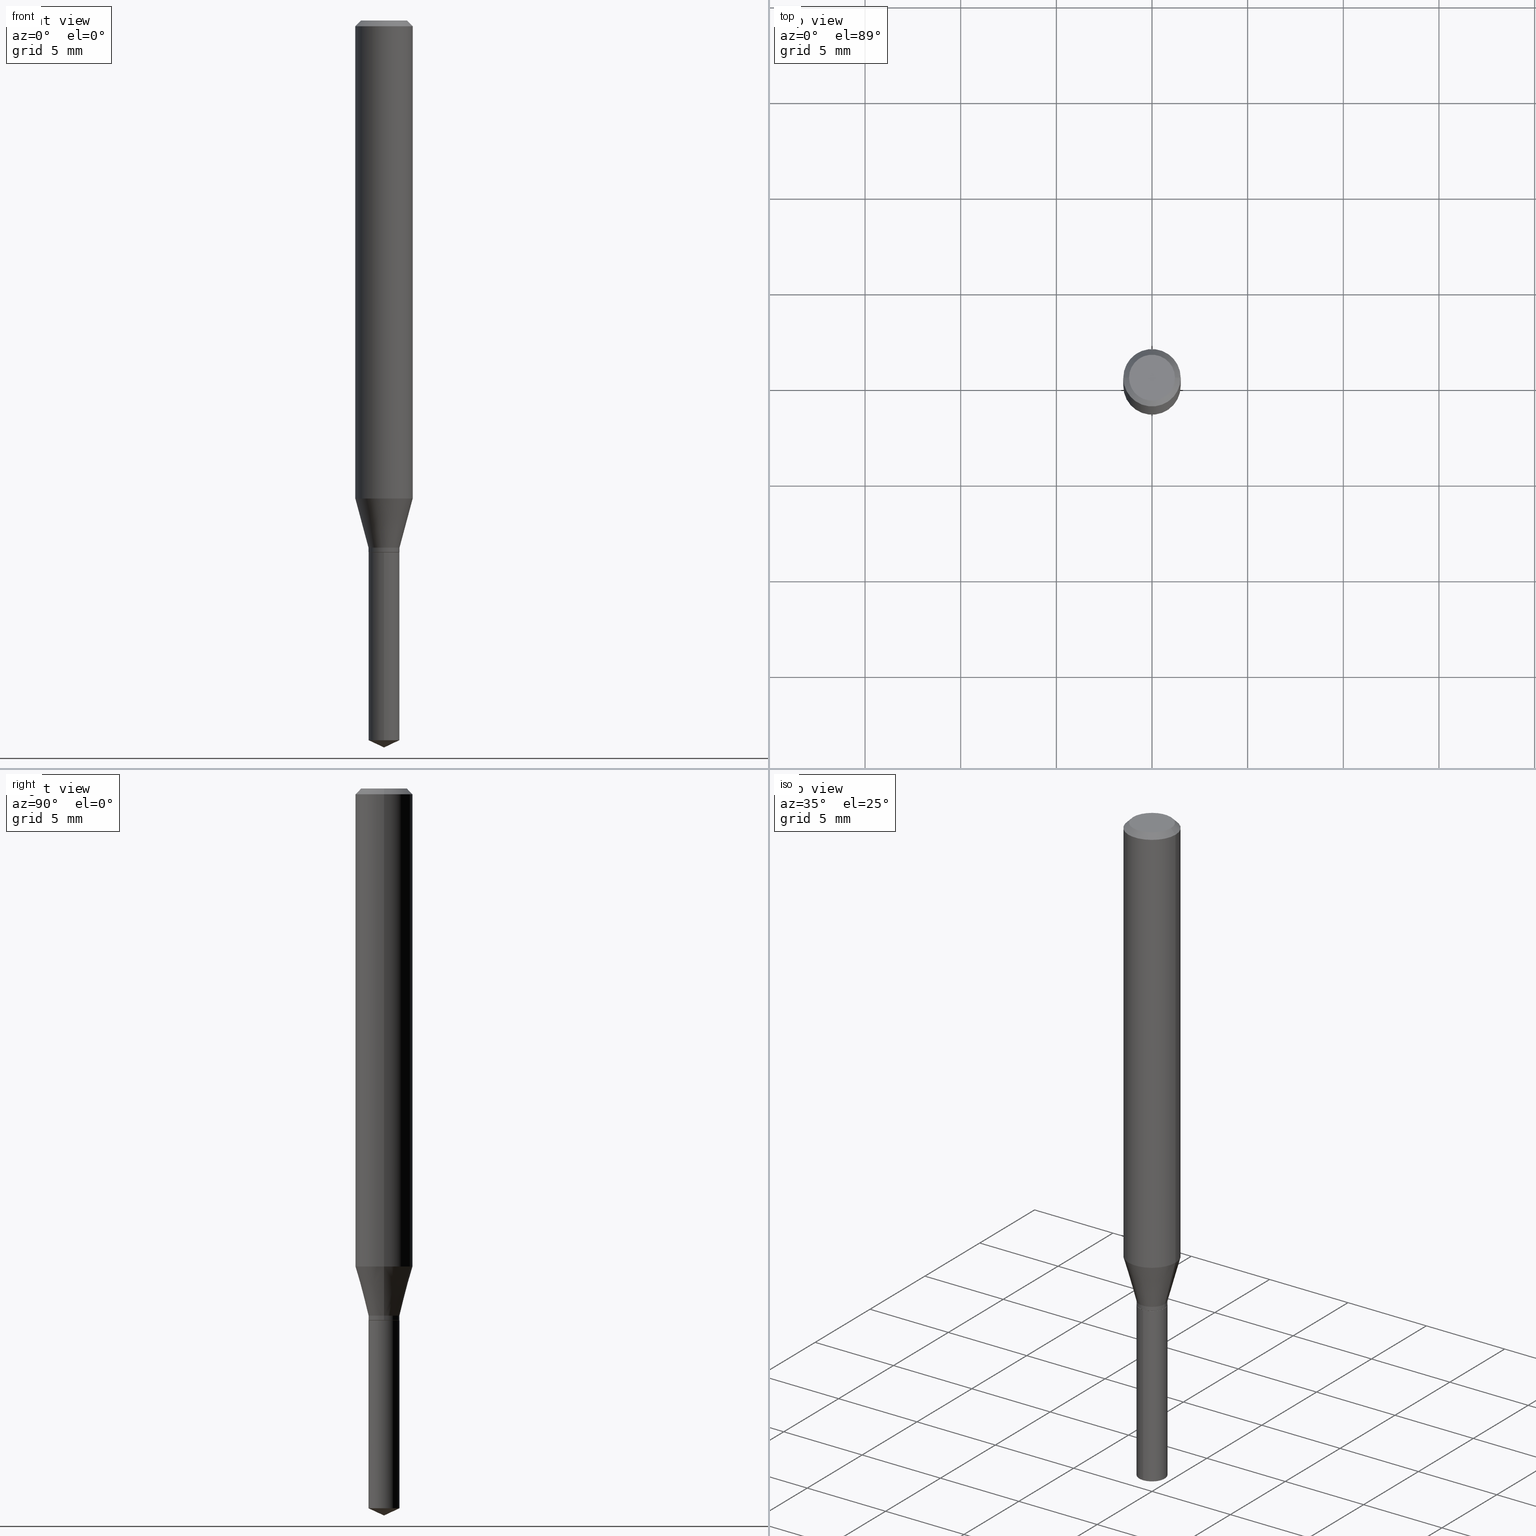
[diagram: canonical four-view strip — front | top / right | iso, engineering-drawing reading convention]
A machine part, canonical four-view strip (front | top / right | iso — engineering-drawing reading convention). The complete STEP part file that produces these views, byte-faithful:
ISO-10303-21;
HEADER;
FILE_DESCRIPTION (( 'STEP AP203' ),
    '1' );
FILE_NAME ('07899.STEP',
    '2024-04-24T05:41:05',
    ( '' ),
    ( '' ),
    'SwSTEP 2.0',
    'SolidWorks 2023',
    '' );
FILE_SCHEMA (( 'CONFIG_CONTROL_DESIGN' ));
ENDSEC;

DATA;
#1 = DIRECTION ( 'NONE',  ( 1.000000000000000000, -6.982962677686266711E-15, 0.000000000000000000 ) ) ;
#2 = PRODUCT_DEFINITION_FORMATION_WITH_SPECIFIED_SOURCE ( 'ANY', '', #329, .NOT_KNOWN. ) ;
#3 = CARTESIAN_POINT ( 'NONE',  ( -9.261968845786000133E-28, 1.322362114038720264E-13, 37.87397874015748300 ) ) ;
#4 = CIRCLE ( 'NONE', #226, 0.03190000000000000474 ) ;
#5 = COORDINATED_UNIVERSAL_TIME_OFFSET ( 5, 0, .BEHIND. ) ;
#6 =( NAMED_UNIT ( * ) SI_UNIT ( $, .STERADIAN. ) SOLID_ANGLE_UNIT ( ) );
#7 = DIRECTION ( 'NONE',  ( 1.000000000000000000, -6.982962677686265133E-15, 0.000000000000000000 ) ) ;
#8 = ORIENTED_EDGE ( 'NONE', *, *, #352, .T. ) ;
#9 = EDGE_CURVE ( 'NONE', #324, #53, #406, .T. ) ;
#10 = VECTOR ( 'NONE', #29, 39.37007874015748143 ) ;
#11 = CARTESIAN_POINT ( 'NONE',  ( 2.676565608369631794E-29, -3.821426325363822773E-15, -1.094499999999999806 ) ) ;
#12 = CARTESIAN_POINT ( 'NONE',  ( 2.676565608369632355E-29, -3.821426325363822773E-15, -1.094500000000000028 ) ) ;
#13 = ORIENTED_EDGE ( 'NONE', *, *, #268, .T. ) ;
#14 = CALENDAR_DATE ( 2024, 24, 4 ) ;
#15 = FACE_OUTER_BOUND ( 'NONE', #294, .T. ) ;
#16 = ORIENTED_EDGE ( 'NONE', *, *, #278, .F. ) ;
#17 = EDGE_CURVE ( 'NONE', #355, #55, #117, .T. ) ;
#18 = DIRECTION ( 'NONE',  ( -2.445468806185136597E-29, 3.491481338843145583E-15, 1.000000000000000000 ) ) ;
#19 = ORIENTED_EDGE ( 'NONE', *, *, #190, .T. ) ;
#20 = DIRECTION ( 'NONE',  ( -1.000000000000000000, 6.982962677686265922E-15, -4.876176775795935793E-29 ) ) ;
#21 = EDGE_LOOP ( 'NONE', ( #302, #450 ) ) ;
#22 = CONICAL_SURFACE ( 'NONE', #33, 0.03189999999999999780, 0.2617993877991501295 ) ;
#23 = DIRECTION ( 'NONE',  ( -2.445468806185136597E-29, 3.491481338843145583E-15, 1.000000000000000000 ) ) ;
#24 = EDGE_CURVE ( 'NONE', #221, #392, #397, .T. ) ;
#25 = DIRECTION ( 'NONE',  ( -2.445468806185136597E-29, 3.491481338843145583E-15, 1.000000000000000000 ) ) ;
#26 = DIRECTION ( 'NONE',  ( -2.445468806185136597E-29, 3.491481338843145583E-15, 1.000000000000000000 ) ) ;
#27 = AXIS2_PLACEMENT_3D ( 'NONE', #11, #269, #80 ) ;
#28 = VERTEX_POINT ( 'NONE', #187 ) ;
#29 = DIRECTION ( 'NONE',  ( -0.7071067811865453523, 2.468850131082234184E-15, -0.7071067811865496822 ) ) ;
#30 = AXIS2_PLACEMENT_3D ( 'NONE', #70, #67, #418 ) ;
#31 = PERSON ( 'UNSPECIFIED', 'UNSPECIFIED', 'UNSPECIFIED', ('UNSPECIFIED'), ('UNSPECIFIED'), ('UNSPECIFIED') ) ;
#32 = DIRECTION ( 'NONE',  ( -2.445468806185136597E-29, 3.491481338843145583E-15, 1.000000000000000000 ) ) ;
#33 = AXIS2_PLACEMENT_3D ( 'NONE', #471, #440, #405 ) ;
#34 = DIRECTION ( 'NONE',  ( -6.982962677686266711E-15, -1.000000000000000000, 0.000000000000000000 ) ) ;
#35 = ORIENTED_EDGE ( 'NONE', *, *, #483, .T. ) ;
#36 = ADVANCED_FACE ( 'NONE', ( #39 ), #292, .T. ) ;
#37 = DIRECTION ( 'NONE',  ( -6.982962677686266711E-15, -1.000000000000000000, 4.281893406997278296E-15 ) ) ;
#38 = LINE ( 'NONE', #451, #360 ) ;
#39 = FACE_OUTER_BOUND ( 'NONE', #126, .T. ) ;
#40 = AXIS2_PLACEMENT_3D ( 'NONE', #487, #144, #66 ) ;
#41 = DIRECTION ( 'NONE',  ( -2.445468806185136877E-29, 3.491481338843145188E-15, 1.000000000000000000 ) ) ;
#42 = DIRECTION ( 'NONE',  ( 0.000000000000000000, 0.000000000000000000, 1.000000000000000000 ) ) ;
#43 = CARTESIAN_POINT ( 'NONE',  ( -9.261968845786000133E-28, 1.322362114038720264E-13, 37.87397874015748300 ) ) ;
#44 = EDGE_CURVE ( 'NONE', #332, #188, #133, .T. ) ;
#45 = EDGE_LOOP ( 'NONE', ( #162, #396, #282, #204 ) ) ;
#46 = DIRECTION ( 'NONE',  ( -1.000000000000000000, 6.982962677686266711E-15, 0.000000000000000000 ) ) ;
#47 = ORIENTED_EDGE ( 'NONE', *, *, #278, .T. ) ;
#48 = AXIS2_PLACEMENT_3D ( 'NONE', #192, #457, #119 ) ;
#49 = FACE_OUTER_BOUND ( 'NONE', #314, .T. ) ;
#50 = ORIENTED_EDGE ( 'NONE', *, *, #9, .T. ) ;
#51 = EDGE_CURVE ( 'NONE', #427, #232, #416, .T. ) ;
#52 = DIRECTION ( 'NONE',  ( 1.000000000000000000, 0.000000000000000000, 0.000000000000000000 ) ) ;
#53 = VERTEX_POINT ( 'NONE', #227 ) ;
#54 = FACE_OUTER_BOUND ( 'NONE', #153, .T. ) ;
#55 = VERTEX_POINT ( 'NONE', #320 ) ;
#56 = AXIS2_PLACEMENT_3D ( 'NONE', #209, #25, #288 ) ;
#57 = CARTESIAN_POINT ( 'NONE',  ( 2.676565608369631794E-29, -3.821426325363822773E-15, -1.094499999999999806 ) ) ;
#58 = MANIFOLD_SOLID_BREP ( 'Body-Move/Copy2[2]', #245 ) ;
#59 = CYLINDRICAL_SURFACE ( 'NONE', #56, 0.03189999999999999780 ) ;
#60 = CONICAL_SURFACE ( 'NONE', #122, 0.05904999999999999832, 0.7853981633974452814 ) ;
#61 = PLANE ( 'NONE',  #212 ) ;
#62 = CC_DESIGN_SECURITY_CLASSIFICATION ( #375, ( #2 ) ) ;
#63 = EDGE_CURVE ( 'NONE', #188, #432, #275, .T. ) ;
#64 = DIRECTION ( 'NONE',  ( 2.445470214571801836E-29, -3.491479321953280158E-15, -1.000000000000000000 ) ) ;
#65 = PERSON_AND_ORGANIZATION_ROLE ( 'creator' ) ;
#66 = DIRECTION ( 'NONE',  ( 1.000000000000000000, -6.982962677686266711E-15, 4.876185090822587894E-29 ) ) ;
#67 = DIRECTION ( 'NONE',  ( -2.445468806185136597E-29, 3.491481338843145583E-15, 1.000000000000000000 ) ) ;
#68 = EDGE_CURVE ( 'NONE', #357, #432, #4, .T. ) ;
#69 = VECTOR ( 'NONE', #114, 39.37007874015748143 ) ;
#70 = CARTESIAN_POINT ( 'NONE',  ( 2.405301542264094135E-29, -3.434133131391878685E-15, -0.9835748205745047379 ) ) ;
#71 = CLOSED_SHELL ( 'NONE', ( #235, #289, #76, #453, #230 ) ) ;
#72 = FACE_OUTER_BOUND ( 'NONE', #276, .T. ) ;
#73 = FACE_OUTER_BOUND ( 'NONE', #362, .T. ) ;
#74 = DIRECTION ( 'NONE',  ( -2.445468806185136597E-29, 3.491481338843145583E-15, 1.000000000000000000 ) ) ;
#75 = VECTOR ( 'NONE', #105, 39.37007874015748854 ) ;
#76 = ADVANCED_FACE ( 'NONE', ( #270 ), #78, .T. ) ;
#77 = LENGTH_MEASURE_WITH_UNIT ( LENGTH_MEASURE( 0.02539999999999999897 ), #155 );
#78 = CONICAL_SURFACE ( 'NONE', #361, 84.42940631927464779, 1.134464013796317339 ) ;
#79 = APPROVAL_ROLE ( '' ) ;
#80 = DIRECTION ( 'NONE',  ( -6.982962677686266711E-15, -1.000000000000000000, 4.281893406997278296E-15 ) ) ;
#81 = CARTESIAN_POINT ( 'NONE',  ( 0.000000000000000000, 0.000000000000000000, 0.000000000000000000 ) ) ;
#82 = EDGE_LOOP ( 'NONE', ( #231, #429, #359, #403 ) ) ;
#83 = CIRCLE ( 'NONE', #264, 0.03189999999999999780 ) ;
#84 = DIRECTION ( 'NONE',  ( 2.438088387897960049E-29, -3.491481338843145188E-15, -1.000000000000000000 ) ) ;
#85 = EDGE_LOOP ( 'NONE', ( #466, #273, #95, #237 ) ) ;
#86 = CC_DESIGN_PERSON_AND_ORGANIZATION_ASSIGNMENT ( #167, #351, ( #2 ) ) ;
#87 = PERSON_AND_ORGANIZATION_ROLE ( 'creator' ) ;
#88 = APPROVAL_PERSON_ORGANIZATION ( #462, #331, #79 ) ;
#89 = APPROVAL_PERSON_ORGANIZATION ( #123, #259, #356 ) ;
#90 = ORIENTED_EDGE ( 'NONE', *, *, #363, .F. ) ;
#91 = APPLICATION_PROTOCOL_DEFINITION ( 'international standard', 'config_control_design', 1994, #464 ) ;
#92 = DIRECTION ( 'NONE',  ( -2.445470214571802116E-29, 3.491479321953280158E-15, 1.000000000000000000 ) ) ;
#93 = ORIENTED_EDGE ( 'NONE', *, *, #483, .F. ) ;
#94 = CARTESIAN_POINT ( 'NONE',  ( -2.227565094181651199E-16, -0.03190000000000382113, -1.094499999999999806 ) ) ;
#95 = ORIENTED_EDGE ( 'NONE', *, *, #307, .T. ) ;
#96 = VECTOR ( 'NONE', #41, 39.37007874015748143 ) ;
#97 = EDGE_CURVE ( 'NONE', #392, #221, #139, .T. ) ;
#98 = DIRECTION ( 'NONE',  ( -2.445470214571802396E-29, 3.491479321953280158E-15, 1.000000000000000000 ) ) ;
#99 = DESIGN_CONTEXT ( 'detailed design', #344, 'design' ) ;
#100 = CARTESIAN_POINT ( 'NONE',  ( 2.266631327074986663E-16, 0.03189999999999617447, -1.094500000000000028 ) ) ;
#101 = DIRECTION ( 'NONE',  ( 6.982962677686265922E-15, 1.000000000000000000, -3.491479321953280158E-15 ) ) ;
#102 = ADVANCED_FACE ( 'NONE', ( #394 ), #233, .T. ) ;
#103 = DIRECTION ( 'NONE',  ( -1.000000000000000000, 6.982962677686266711E-15, 0.000000000000000000 ) ) ;
#104 = AXIS2_PLACEMENT_3D ( 'NONE', #161, #435, #193 ) ;
#105 = DIRECTION ( 'NONE',  ( -0.7071067811864297781, 7.493145998869928175E-15, 0.7071067811866651454 ) ) ;
#106 = CARTESIAN_POINT ( 'NONE',  ( 2.653089107830254266E-29, -3.787908104510928327E-15, -1.084899999999999975 ) ) ;
#107 = ORIENTED_EDGE ( 'NONE', *, *, #129, .T. ) ;
#108 = DIRECTION ( 'NONE',  ( 0.7071067811865453523, -7.319954787623248157E-15, -0.7071067811865496822 ) ) ;
#109 = ORIENTED_EDGE ( 'NONE', *, *, #368, .F. ) ;
#110 = CARTESIAN_POINT ( 'NONE',  ( -0.03190000000000000474, -3.577131211895192953E-15, -1.093999999999999861 ) ) ;
#111 = APPROVAL_STATUS ( 'not_yet_approved' ) ;
#112 = CARTESIAN_POINT ( 'NONE',  ( 2.266631327075081820E-16, 0.03189999999999483526, -1.481224785704855496 ) ) ;
#113 = ADVANCED_FACE ( 'NONE', ( #54 ), #165, .F. ) ;
#114 = DIRECTION ( 'NONE',  ( -6.328713451373378845E-15, -0.9063077870366498257, 0.4226182617406997188 ) ) ;
#115 = LOCAL_TIME ( 1, 41, 5.000000000000000000, #299 ) ;
#116 = DIRECTION ( 'NONE',  ( 1.000000000000000000, -6.982962677686265133E-15, 0.000000000000000000 ) ) ;
#117 = CIRCLE ( 'NONE', #353, 0.03189999999999999780 ) ;
#118 = ORIENTED_EDGE ( 'NONE', *, *, #9, .F. ) ;
#119 = DIRECTION ( 'NONE',  ( 1.000000000000000000, -6.982962677686266711E-15, 0.000000000000000000 ) ) ;
#120 = ADVANCED_FACE ( 'NONE', ( #49 ), #246, .T. ) ;
#121 = ORIENTED_EDGE ( 'NONE', *, *, #129, .F. ) ;
#122 = AXIS2_PLACEMENT_3D ( 'NONE', #407, #473, #103 ) ;
#123 = PERSON_AND_ORGANIZATION ( #31, #267 ) ;
#124 = ORIENTED_EDGE ( 'NONE', *, *, #44, .F. ) ;
#125 =( CONVERSION_BASED_UNIT ( 'INCH', #77 ) LENGTH_UNIT ( ) NAMED_UNIT ( #321 ) );
#126 = EDGE_LOOP ( 'NONE', ( #8, #13, #350, #158 ) ) ;
#127 = DIRECTION ( 'NONE',  ( 0.2588190451025214611, 1.565188264969621573E-15, 0.9659258262890682012 ) ) ;
#128 = ORIENTED_EDGE ( 'NONE', *, *, #352, .F. ) ;
#129 = EDGE_CURVE ( 'NONE', #271, #392, #201, .T. ) ;
#130 = ORIENTED_EDGE ( 'NONE', *, *, #316, .F. ) ;
#131 = AXIS2_PLACEMENT_3D ( 'NONE', #402, #32, #335 ) ;
#132 = ORIENTED_EDGE ( 'NONE', *, *, #176, .T. ) ;
#133 = CIRCLE ( 'NONE', #104, 0.03139999999999999736 ) ;
#134 = CARTESIAN_POINT ( 'NONE',  ( 2.675342873966538993E-29, -3.819680584694400481E-15, -1.093999999999999861 ) ) ;
#135 = ADVANCED_FACE ( 'NONE', ( #15 ), #303, .T. ) ;
#136 = LINE ( 'NONE', #94, #266 ) ;
#137 = DIRECTION ( 'NONE',  ( -2.445468806185136597E-29, 3.491481338843145583E-15, 1.000000000000000000 ) ) ;
#138 = CIRCLE ( 'NONE', #30, 0.05905000000000011628 ) ;
#139 = CIRCLE ( 'NONE', #424, 0.03189999999999999780 ) ;
#140 = LINE ( 'NONE', #191, #404 ) ;
#141 = CARTESIAN_POINT ( 'NONE',  ( 3.622289553047519167E-29, -5.171667917939139796E-15, -1.481224785704855496 ) ) ;
#142 = CALENDAR_DATE ( 2024, 24, 4 ) ;
#143 = ADVANCED_FACE ( 'NONE', ( #442 ), #60, .T. ) ;
#144 = DIRECTION ( 'NONE',  ( -2.445468806185136597E-29, 3.491481338843145583E-15, 1.000000000000000000 ) ) ;
#145 = PERSON_AND_ORGANIZATION ( #31, #267 ) ;
#146 = DIRECTION ( 'NONE',  ( -2.445468806185136877E-29, 3.491481338843145188E-15, 1.000000000000000000 ) ) ;
#147 = APPROVAL_PERSON_ORGANIZATION ( #145, #336, #154 ) ;
#148 = PERSON_AND_ORGANIZATION ( #31, #267 ) ;
#149 = VECTOR ( 'NONE', #328, 39.37007874015748143 ) ;
#150 = PLANE ( 'NONE',  #445 ) ;
#151 = AXIS2_PLACEMENT_3D ( 'NONE', #12, #229, #7 ) ;
#152 = PRODUCT_RELATED_PRODUCT_CATEGORY ( 'detail', '', ( #329 ) ) ;
#153 = EDGE_LOOP ( 'NONE', ( #399, #50 ) ) ;
#154 = APPROVAL_ROLE ( '' ) ;
#155 =( LENGTH_UNIT ( ) NAMED_UNIT ( * ) SI_UNIT ( $, .METRE. ) );
#156 = DATE_AND_TIME ( #343, #366 ) ;
#157 = CARTESIAN_POINT ( 'NONE',  ( 2.888098660104664204E-31, -4.123439461173780263E-17, -0.01181000000000007218 ) ) ;
#158 = ORIENTED_EDGE ( 'NONE', *, *, #63, .F. ) ;
#159 = PERSON_AND_ORGANIZATION ( #31, #267 ) ;
#160 = EDGE_CURVE ( 'NONE', #392, #198, #181, .T. ) ;
#161 = CARTESIAN_POINT ( 'NONE',  ( 2.676565608369632355E-29, -3.821426325363822773E-15, -1.094500000000000028 ) ) ;
#162 = ORIENTED_EDGE ( 'NONE', *, *, #24, .T. ) ;
#163 = DATE_TIME_ROLE ( 'classification_date' ) ;
#164 = MECHANICAL_CONTEXT ( 'NONE', #464, 'mechanical' ) ;
#165 = PLANE ( 'NONE',  #485 ) ;
#166 = ORIENTED_EDGE ( 'NONE', *, *, #195, .T. ) ;
#167 = PERSON_AND_ORGANIZATION ( #31, #267 ) ;
#168 = CARTESIAN_POINT ( 'NONE',  ( 0.000000000000000000, 0.000000000000000000, 0.000000000000000000 ) ) ;
#169 = DIRECTION ( 'NONE',  ( 1.000000000000000000, -6.982962677686266711E-15, 0.000000000000000000 ) ) ;
#170 = EDGE_LOOP ( 'NONE', ( #347, #215, #16, #207 ) ) ;
#171 = CARTESIAN_POINT ( 'NONE',  ( 2.888098660104664204E-31, -4.123439461173780263E-17, -0.01181000000000007218 ) ) ;
#172 = ORIENTED_EDGE ( 'NONE', *, *, #489, .T. ) ;
#173 = EDGE_CURVE ( 'NONE', #28, #198, #83, .T. ) ;
#174 = ORIENTED_EDGE ( 'NONE', *, *, #68, .F. ) ;
#175 = CARTESIAN_POINT ( 'NONE',  ( -2.227565094181557522E-16, -0.03190000000000518116, -1.481224785704855496 ) ) ;
#176 = EDGE_CURVE ( 'NONE', #221, #28, #136, .T. ) ;
#177 = LOCAL_TIME ( 1, 41, 5.000000000000000000, #386 ) ;
#178 = DIRECTION ( 'NONE',  ( 1.000000000000000000, -6.982962677686265133E-15, 0.000000000000000000 ) ) ;
#179 = DIRECTION ( 'NONE',  ( -2.445468806185136877E-29, 3.491481338843145188E-15, 1.000000000000000000 ) ) ;
#180 = EDGE_LOOP ( 'NONE', ( #194, #488, #132, #436 ) ) ;
#181 = LINE ( 'NONE', #100, #438 ) ;
#182 = VERTEX_POINT ( 'NONE', #369 ) ;
#183 = CARTESIAN_POINT ( 'NONE',  ( -0.05904999999999999832, 3.711095515056362547E-16, -0.01181000000000007218 ) ) ;
#184 = EDGE_CURVE ( 'NONE', #439, #427, #284, .T. ) ;
#185 = AXIS2_PLACEMENT_3D ( 'NONE', #81, #272, #197 ) ;
#186 = DIRECTION ( 'NONE',  ( -6.982962677686267499E-15, -1.000000000000000000, 3.520397390770440854E-15 ) ) ;
#187 = CARTESIAN_POINT ( 'NONE',  ( -2.227565094181651199E-16, -0.03190000000000382113, -1.094499999999999806 ) ) ;
#188 = VERTEX_POINT ( 'NONE', #208 ) ;
#189 = FACE_OUTER_BOUND ( 'NONE', #82, .T. ) ;
#190 = EDGE_CURVE ( 'NONE', #55, #182, #330, .T. ) ;
#191 = CARTESIAN_POINT ( 'NONE',  ( -0.03189999999999999780, -3.561244971803456876E-15, -1.084899999999999975 ) ) ;
#192 = CARTESIAN_POINT ( 'NONE',  ( 2.405301542264094135E-29, -3.434133131391878685E-15, -0.9835748205745047379 ) ) ;
#193 = DIRECTION ( 'NONE',  ( 1.000000000000000000, -6.982962677686265133E-15, 0.000000000000000000 ) ) ;
#194 = ORIENTED_EDGE ( 'NONE', *, *, #160, .F. ) ;
#195 = EDGE_CURVE ( 'NONE', #432, #357, #199, .T. ) ;
#196 =( NAMED_UNIT ( * ) PLANE_ANGLE_UNIT ( ) SI_UNIT ( $, .RADIAN. ) );
#197 = DIRECTION ( 'NONE',  ( 1.000000000000000000, -6.982962677686266711E-15, 4.876176775795935793E-29 ) ) ;
#198 = VERTEX_POINT ( 'NONE', #476 ) ;
#199 = CIRCLE ( 'NONE', #341, 0.03190000000000000474 ) ;
#200 = LINE ( 'NONE', #279, #69 ) ;
#201 = LINE ( 'NONE', #354, #202 ) ;
#202 = VECTOR ( 'NONE', #348, 39.37007874015749564 ) ;
#203 = ORIENTED_EDGE ( 'NONE', *, *, #268, .F. ) ;
#204 = ORIENTED_EDGE ( 'NONE', *, *, #176, .F. ) ;
#205 = ADVANCED_FACE ( 'NONE', ( #480 ), #22, .T. ) ;
#206 = DIRECTION ( 'NONE',  ( -2.445470214571802116E-29, 3.491479321953280158E-15, 1.000000000000000000 ) ) ;
#207 = ORIENTED_EDGE ( 'NONE', *, *, #190, .F. ) ;
#208 = CARTESIAN_POINT ( 'NONE',  ( 0.03139999999999999736, -4.040691353443171510E-15, -1.094500000000000028 ) ) ;
#209 = CARTESIAN_POINT ( 'NONE',  ( 0.000000000000000000, 0.000000000000000000, 0.000000000000000000 ) ) ;
#210 = EDGE_CURVE ( 'NONE', #182, #232, #281, .T. ) ;
#211 = DIRECTION ( 'NONE',  ( -2.445470214571802116E-29, 3.491479321953280158E-15, 1.000000000000000000 ) ) ;
#212 = AXIS2_PLACEMENT_3D ( 'NONE', #410, #64, #101 ) ;
#213 = CYLINDRICAL_SURFACE ( 'NONE', #290, 0.03189999999999999780 ) ;
#214 = CARTESIAN_POINT ( 'NONE',  ( 2.676565608369631794E-29, -3.821426325363822773E-15, -1.094499999999999806 ) ) ;
#215 = ORIENTED_EDGE ( 'NONE', *, *, #363, .T. ) ;
#216 = CARTESIAN_POINT ( 'NONE',  ( -6.481337036943548322E-30, -8.582584970372638777E-15, -1.094500000000000028 ) ) ;
#217 = ADVANCED_FACE ( 'NONE', ( #287 ), #59, .T. ) ;
#218 = CARTESIAN_POINT ( 'NONE',  ( 2.676565608369631794E-29, -3.821426325363822773E-15, -1.094499999999999806 ) ) ;
#219 = AXIS2_PLACEMENT_3D ( 'NONE', #411, #484, #257 ) ;
#220 = LINE ( 'NONE', #333, #334 ) ;
#221 = VERTEX_POINT ( 'NONE', #175 ) ;
#222 = DIRECTION ( 'NONE',  ( -2.438088387897960049E-29, 3.491481338843145188E-15, 1.000000000000000000 ) ) ;
#223 = PERSON_AND_ORGANIZATION ( #31, #267 ) ;
#224 = CARTESIAN_POINT ( 'NONE',  ( 0.000000000000000000, 0.000000000000000000, 0.000000000000000000 ) ) ;
#225 = CONICAL_SURFACE ( 'NONE', #482, 84.42940631927464779, 1.134464013796317339 ) ;
#226 = AXIS2_PLACEMENT_3D ( 'NONE', #387, #428, #116 ) ;
#227 = CARTESIAN_POINT ( 'NONE',  ( -0.04724000000000000421, 3.504923541997677355E-16, -3.380025165670481712E-19 ) ) ;
#228 = DIRECTION ( 'NONE',  ( -2.445468806185136597E-29, 3.491481338843145583E-15, 1.000000000000000000 ) ) ;
#229 = DIRECTION ( 'NONE',  ( -2.445468806185136597E-29, 3.491481338843145583E-15, 1.000000000000000000 ) ) ;
#230 = ADVANCED_FACE ( 'NONE', ( #444 ), #61, .F. ) ;
#231 = ORIENTED_EDGE ( 'NONE', *, *, #184, .F. ) ;
#232 = VERTEX_POINT ( 'NONE', #248 ) ;
#233 = CYLINDRICAL_SURFACE ( 'NONE', #185, 0.05905000000000006077 ) ;
#234 = EDGE_LOOP ( 'NONE', ( #47, #260, #461, #306 ) ) ;
#235 = ADVANCED_FACE ( 'NONE', ( #409 ), #213, .T. ) ;
#236 = DATE_AND_TIME ( #434, #309 ) ;
#237 = ORIENTED_EDGE ( 'NONE', *, *, #17, .F. ) ;
#238 = DIRECTION ( 'NONE',  ( -6.982962677686266711E-15, -1.000000000000000000, 4.281893406997278296E-15 ) ) ;
#239 = PRODUCT_DEFINITION_SHAPE ( 'NONE', 'NONE',  #443 ) ;
#240 = ORIENTED_EDGE ( 'NONE', *, *, #63, .T. ) ;
#241 = CC_DESIGN_APPROVAL ( #336, ( #2 ) ) ;
#242 = DIRECTION ( 'NONE',  ( -2.445470214571802396E-29, 3.491479321953280158E-15, 1.000000000000000000 ) ) ;
#243 = CC_DESIGN_PERSON_AND_ORGANIZATION_ASSIGNMENT ( #223, #87, ( #2 ) ) ;
#244 = CARTESIAN_POINT ( 'NONE',  ( 2.653089107830254266E-29, -3.787908104510928327E-15, -1.084899999999999975 ) ) ;
#245 = CLOSED_SHELL ( 'NONE', ( #36, #143, #102, #205, #447, #217, #345, #393, #120, #113, #283, #135 ) ) ;
#246 = CONICAL_SURFACE ( 'NONE', #378, 0.05904999999999999832, 0.7853981633974452814 ) ;
#247 = CARTESIAN_POINT ( 'NONE',  ( 0.03189999999999999780, -4.010664613929120071E-15, -1.084899999999999975 ) ) ;
#248 = CARTESIAN_POINT ( 'NONE',  ( 0.05904999999999999832, -4.535783407291118600E-16, -0.01181000000000007218 ) ) ;
#249 = ORIENTED_EDGE ( 'NONE', *, *, #295, .T. ) ;
#250 = CARTESIAN_POINT ( 'NONE',  ( 0.05905000000000006077, -4.123439461173744764E-16, 2.879382386107503023E-30 ) ) ;
#251 = AXIS2_PLACEMENT_3D ( 'NONE', #286, #325, #474 ) ;
#252 = EDGE_CURVE ( 'NONE', #55, #355, #349, .T. ) ;
#253 = DIRECTION ( 'NONE',  ( -2.445468806185136597E-29, 3.491481338843145583E-15, 1.000000000000000000 ) ) ;
#254 = LINE ( 'NONE', #183, #10 ) ;
#255 = ORIENTED_EDGE ( 'NONE', *, *, #51, .T. ) ;
#256 = DATE_AND_TIME ( #142, #115 ) ;
#257 = DIRECTION ( 'NONE',  ( 1.000000000000000000, -6.982962677686266711E-15, 4.876176775795935793E-29 ) ) ;
#258 = AXIS2_PLACEMENT_3D ( 'NONE', #218, #415, #37 ) ;
#259 = APPROVAL ( #430, 'UNSPECIFIED' ) ;
#260 = ORIENTED_EDGE ( 'NONE', *, *, #184, .T. ) ;
#261 = CARTESIAN_POINT ( 'NONE',  ( 0.03190000000000000474, -4.042437094112593014E-15, -1.093999999999999861 ) ) ;
#262 = CYLINDRICAL_SURFACE ( 'NONE', #414, 0.03189999999999999780 ) ;
#263 = ORIENTED_EDGE ( 'NONE', *, *, #384, .F. ) ;
#264 = AXIS2_PLACEMENT_3D ( 'NONE', #57, #211, #364 ) ;
#265 = APPROVAL_DATE_TIME ( #156, #331 ) ;
#266 = VECTOR ( 'NONE', #242, 39.37007874015748143 ) ;
#267 = ORGANIZATION ( 'UNSPECIFIED', 'UNSPECIFIED', '' ) ;
#268 = EDGE_CURVE ( 'NONE', #332, #357, #449, .T. ) ;
#269 = DIRECTION ( 'NONE',  ( -2.445470214571802116E-29, 3.491479321953280158E-15, 1.000000000000000000 ) ) ;
#270 = FACE_OUTER_BOUND ( 'NONE', #472, .T. ) ;
#271 = VERTEX_POINT ( 'NONE', #446 ) ;
#272 = DIRECTION ( 'NONE',  ( -2.445468806185136597E-29, 3.491481338843145583E-15, 1.000000000000000000 ) ) ;
#273 = ORIENTED_EDGE ( 'NONE', *, *, #68, .T. ) ;
#274 = CYLINDRICAL_SURFACE ( 'NONE', #27, 0.03189999999999999780 ) ;
#275 = LINE ( 'NONE', #469, #300 ) ;
#276 = EDGE_LOOP ( 'NONE', ( #90, #423, #19, #322 ) ) ;
#277 = CC_DESIGN_APPROVAL ( #331, ( #375 ) ) ;
#278 = EDGE_CURVE ( 'NONE', #182, #439, #138, .T. ) ;
#279 = CARTESIAN_POINT ( 'NONE',  ( 3.658664905062460986E-29, -5.223606628546217219E-15, -1.496099999999999985 ) ) ;
#280 = ORIENTED_EDGE ( 'NONE', *, *, #97, .F. ) ;
#281 = LINE ( 'NONE', #250, #149 ) ;
#282 = ORIENTED_EDGE ( 'NONE', *, *, #173, .F. ) ;
#283 = ADVANCED_FACE ( 'NONE', ( #385 ), #150, .F. ) ;
#284 = LINE ( 'NONE', #365, #381 ) ;
#285 = AXIS2_PLACEMENT_3D ( 'NONE', #106, #253, #296 ) ;
#286 = CARTESIAN_POINT ( 'NONE',  ( 8.265746106709734507E-48, -1.180129479067563789E-33, -3.380025165646692144E-19 ) ) ;
#287 = FACE_OUTER_BOUND ( 'NONE', #85, .T. ) ;
#288 = DIRECTION ( 'NONE',  ( 1.000000000000000000, -6.982962677686266711E-15, 4.876176775795935793E-29 ) ) ;
#289 = ADVANCED_FACE ( 'NONE', ( #455 ), #225, .T. ) ;
#290 = AXIS2_PLACEMENT_3D ( 'NONE', #214, #437, #238 ) ;
#291 = DIRECTION ( 'NONE',  ( 1.000000000000000000, -6.982962677686266711E-15, 4.876176775795935793E-29 ) ) ;
#292 = CONICAL_SURFACE ( 'NONE', #151, 0.03139999999999999736, 0.7853981633972818566 ) ;
#293 = CARTESIAN_POINT ( 'NONE',  ( -0.03139999999999999736, -3.598315906335151432E-15, -1.094500000000000028 ) ) ;
#294 = EDGE_LOOP ( 'NONE', ( #203, #342, #240, #174 ) ) ;
#295 = EDGE_CURVE ( 'NONE', #357, #355, #38, .T. ) ;
#296 = DIRECTION ( 'NONE',  ( 1.000000000000000000, -6.982962677686266711E-15, 0.000000000000000000 ) ) ;
#297 = CARTESIAN_POINT ( 'NONE',  ( 0.04724000000000000421, -3.852183633974369345E-16, -3.380025165621689721E-19 ) ) ;
#298 =( GEOMETRIC_REPRESENTATION_CONTEXT ( 3 ) GLOBAL_UNCERTAINTY_ASSIGNED_CONTEXT ( ( #401 ) ) GLOBAL_UNIT_ASSIGNED_CONTEXT ( ( #125, #196, #6 ) ) REPRESENTATION_CONTEXT ( 'NONE', 'WORKASPACE' ) );
#299 = COORDINATED_UNIVERSAL_TIME_OFFSET ( 5, 0, .BEHIND. ) ;
#300 = VECTOR ( 'NONE', #460, 39.37007874015748854 ) ;
#301 = LINE ( 'NONE', #412, #96 ) ;
#302 = ORIENTED_EDGE ( 'NONE', *, *, #173, .T. ) ;
#303 = CONICAL_SURFACE ( 'NONE', #389, 0.03139999999999999736, 0.7853981633972818566 ) ;
#304 = APPROVAL_DATE_TIME ( #308, #336 ) ;
#305 = FACE_OUTER_BOUND ( 'NONE', #180, .T. ) ;
#306 = ORIENTED_EDGE ( 'NONE', *, *, #210, .F. ) ;
#307 = EDGE_CURVE ( 'NONE', #432, #55, #301, .T. ) ;
#308 = DATE_AND_TIME ( #14, #177 ) ;
#309 = LOCAL_TIME ( 1, 41, 5.000000000000000000, #468 ) ;
#310 = EDGE_LOOP ( 'NONE', ( #93, #107, #477 ) ) ;
#311 = SECURITY_CLASSIFICATION_LEVEL ( 'unclassified' ) ;
#312 = APPLICATION_PROTOCOL_DEFINITION ( 'international standard', 'config_control_design', 1994, #344 ) ;
#313 = DIRECTION ( 'NONE',  ( -6.982962677686267499E-15, -1.000000000000000000, 3.520397390770440854E-15 ) ) ;
#314 = EDGE_LOOP ( 'NONE', ( #263, #130, #470, #255 ) ) ;
#315 = PERSON_AND_ORGANIZATION ( #31, #267 ) ;
#316 = EDGE_CURVE ( 'NONE', #53, #324, #431, .T. ) ;
#317 = CARTESIAN_POINT ( 'NONE',  ( 2.676565608369632355E-29, -3.821426325363822773E-15, -1.094500000000000028 ) ) ;
#318 = ORIENTED_EDGE ( 'NONE', *, *, #307, .F. ) ;
#319 = PERSON_AND_ORGANIZATION_ROLE ( 'classification_officer' ) ;
#320 = CARTESIAN_POINT ( 'NONE',  ( 0.03189999999999999780, -4.010664613929120071E-15, -1.084899999999999975 ) ) ;
#321 = DIMENSIONAL_EXPONENTS ( 1.000000000000000000, 0.000000000000000000, 0.000000000000000000, 0.000000000000000000, 0.000000000000000000, 0.000000000000000000, 0.000000000000000000 ) ;
#322 = ORIENTED_EDGE ( 'NONE', *, *, #475, .F. ) ;
#323 = CIRCLE ( 'NONE', #258, 0.03189999999999999780 ) ;
#324 = VERTEX_POINT ( 'NONE', #297 ) ;
#325 = DIRECTION ( 'NONE',  ( -2.445468806185136597E-29, 3.491481338843145583E-15, 1.000000000000000000 ) ) ;
#326 = CC_DESIGN_PERSON_AND_ORGANIZATION_ASSIGNMENT ( #159, #319, ( #375 ) ) ;
#327 = CIRCLE ( 'NONE', #383, 0.05904999999999999832 ) ;
#328 = DIRECTION ( 'NONE',  ( -2.445468806185136877E-29, 3.491481338843145188E-15, 1.000000000000000000 ) ) ;
#329 = PRODUCT ( '07899', '07899', '', ( #164 ) ) ;
#330 = LINE ( 'NONE', #247, #374 ) ;
#331 = APPROVAL ( #382, 'UNSPECIFIED' ) ;
#332 = VERTEX_POINT ( 'NONE', #448 ) ;
#333 = CARTESIAN_POINT ( 'NONE',  ( 0.05904999999999999832, -4.463468013801466955E-16, -0.01181000000000007218 ) ) ;
#334 = VECTOR ( 'NONE', #108, 39.37007874015748143 ) ;
#335 = DIRECTION ( 'NONE',  ( 1.000000000000000000, -6.982962677686266711E-15, 0.000000000000000000 ) ) ;
#336 = APPROVAL ( #111, 'UNSPECIFIED' ) ;
#337 = DIRECTION ( 'NONE',  ( -2.445470214571802116E-29, 3.491479321953280158E-15, 1.000000000000000000 ) ) ;
#338 = DIRECTION ( 'NONE',  ( -0.2588190451025214611, 5.211531920934551042E-15, 0.9659258262890682012 ) ) ;
#339 = AXIS2_PLACEMENT_3D ( 'NONE', #481, #373, #379 ) ;
#340 = CARTESIAN_POINT ( 'NONE',  ( -0.05905000000000011628, -3.014557645925538404E-15, -0.9835748205745047379 ) ) ;
#341 = AXIS2_PLACEMENT_3D ( 'NONE', #134, #26, #178 ) ;
#342 = ORIENTED_EDGE ( 'NONE', *, *, #44, .T. ) ;
#343 = CALENDAR_DATE ( 2024, 24, 4 ) ;
#344 = APPLICATION_CONTEXT ( 'configuration controlled 3d designs of mechanical parts and assemblies' ) ;
#345 = ADVANCED_FACE ( 'NONE', ( #72 ), #367, .T. ) ;
#346 = CARTESIAN_POINT ( 'NONE',  ( 3.622289553047519167E-29, -5.171667917939139796E-15, -1.481224785704855496 ) ) ;
#347 = ORIENTED_EDGE ( 'NONE', *, *, #252, .T. ) ;
#348 = DIRECTION ( 'NONE',  ( 6.439704144417032720E-15, 0.9063077870366527122, 0.4226182617406934461 ) ) ;
#349 = CIRCLE ( 'NONE', #131, 0.03189999999999999780 ) ;
#350 = ORIENTED_EDGE ( 'NONE', *, *, #195, .F. ) ;
#351 = PERSON_AND_ORGANIZATION_ROLE ( 'design_supplier' ) ;
#352 = EDGE_CURVE ( 'NONE', #188, #332, #478, .T. ) ;
#353 = AXIS2_PLACEMENT_3D ( 'NONE', #244, #74, #1 ) ;
#354 = CARTESIAN_POINT ( 'NONE',  ( 3.658668015054778287E-29, -5.223602213574301462E-15, -1.496099999999999985 ) ) ;
#355 = VERTEX_POINT ( 'NONE', #420 ) ;
#356 = APPROVAL_ROLE ( '' ) ;
#357 = VERTEX_POINT ( 'NONE', #110 ) ;
#358 = CARTESIAN_POINT ( 'NONE',  ( 4.132873053354867254E-48, -5.900647395337818946E-34, -1.690012582823346072E-19 ) ) ;
#359 = ORIENTED_EDGE ( 'NONE', *, *, #210, .T. ) ;
#360 = VECTOR ( 'NONE', #146, 39.37007874015748143 ) ;
#361 = AXIS2_PLACEMENT_3D ( 'NONE', #43, #206, #313 ) ;
#362 = EDGE_LOOP ( 'NONE', ( #166, #249, #372, #318 ) ) ;
#363 = EDGE_CURVE ( 'NONE', #355, #439, #140, .T. ) ;
#364 = DIRECTION ( 'NONE',  ( -6.982962677686266711E-15, -1.000000000000000000, 4.281893406997278296E-15 ) ) ;
#365 = CARTESIAN_POINT ( 'NONE',  ( -0.05905000000000006077, 4.195754854663395916E-16, -2.904631170795524694E-30 ) ) ;
#366 = LOCAL_TIME ( 1, 41, 5.000000000000000000, #467 ) ;
#367 = CONICAL_SURFACE ( 'NONE', #285, 0.03189999999999999780, 0.2617993877991501295 ) ;
#368 = EDGE_CURVE ( 'NONE', #53, #427, #254, .T. ) ;
#369 = CARTESIAN_POINT ( 'NONE',  ( 0.05905000000000011628, -3.846477077509253606E-15, -0.9835748205745047379 ) ) ;
#370 = EDGE_LOOP ( 'NONE', ( #128, #124 ) ) ;
#371 = AXIS2_PLACEMENT_3D ( 'NONE', #141, #377, #34 ) ;
#372 = ORIENTED_EDGE ( 'NONE', *, *, #252, .F. ) ;
#373 = DIRECTION ( 'NONE',  ( -2.445468806185136597E-29, 3.491481338843145583E-15, 1.000000000000000000 ) ) ;
#374 = VECTOR ( 'NONE', #127, 39.37007874015747433 ) ;
#375 = SECURITY_CLASSIFICATION ( '', '', #311 ) ;
#376 = CYLINDRICAL_SURFACE ( 'NONE', #219, 0.05905000000000006077 ) ;
#377 = DIRECTION ( 'NONE',  ( -2.445470214571802116E-29, 3.491479321953280158E-15, 1.000000000000000000 ) ) ;
#378 = AXIS2_PLACEMENT_3D ( 'NONE', #171, #391, #46 ) ;
#379 = DIRECTION ( 'NONE',  ( 1.000000000000000000, -6.982962677686265133E-15, 0.000000000000000000 ) ) ;
#380 = DIRECTION ( 'NONE',  ( 1.000000000000000000, -6.982962677686265922E-15, 4.876176775795935793E-29 ) ) ;
#381 = VECTOR ( 'NONE', #179, 39.37007874015748143 ) ;
#382 = APPROVAL_STATUS ( 'not_yet_approved' ) ;
#383 = AXIS2_PLACEMENT_3D ( 'NONE', #398, #228, #390 ) ;
#384 = EDGE_CURVE ( 'NONE', #324, #232, #220, .T. ) ;
#385 = FACE_OUTER_BOUND ( 'NONE', #370, .T. ) ;
#386 = COORDINATED_UNIVERSAL_TIME_OFFSET ( 5, 0, .BEHIND. ) ;
#387 = CARTESIAN_POINT ( 'NONE',  ( 2.675342873966538993E-29, -3.819680584694400481E-15, -1.093999999999999861 ) ) ;
#388 = MANIFOLD_SOLID_BREP ( 'Body-Move/Copy2[1]', #71 ) ;
#389 = AXIS2_PLACEMENT_3D ( 'NONE', #317, #23, #479 ) ;
#390 = DIRECTION ( 'NONE',  ( 1.000000000000000000, -6.982962677686266711E-15, 0.000000000000000000 ) ) ;
#391 = DIRECTION ( 'NONE',  ( 2.445468806185136597E-29, -3.491481338843145583E-15, -1.000000000000000000 ) ) ;
#392 = VERTEX_POINT ( 'NONE', #112 ) ;
#393 = ADVANCED_FACE ( 'NONE', ( #189 ), #376, .T. ) ;
#394 = FACE_OUTER_BOUND ( 'NONE', #234, .T. ) ;
#395 = CC_DESIGN_APPROVAL ( #259, ( #443 ) ) ;
#396 = ORIENTED_EDGE ( 'NONE', *, *, #160, .T. ) ;
#397 = CIRCLE ( 'NONE', #371, 0.03189999999999999780 ) ;
#398 = CARTESIAN_POINT ( 'NONE',  ( 2.888098660104664204E-31, -4.123439461173780263E-17, -0.01181000000000007218 ) ) ;
#399 = ORIENTED_EDGE ( 'NONE', *, *, #316, .T. ) ;
#400 = EDGE_CURVE ( 'NONE', #198, #28, #323, .T. ) ;
#401 = UNCERTAINTY_MEASURE_WITH_UNIT (LENGTH_MEASURE( 1.000000000000000082E-05 ), #125, 'distance_accuracy_value', 'NONE');
#402 = CARTESIAN_POINT ( 'NONE',  ( 2.653089107830254266E-29, -3.787908104510928327E-15, -1.084899999999999975 ) ) ;
#403 = ORIENTED_EDGE ( 'NONE', *, *, #51, .F. ) ;
#404 = VECTOR ( 'NONE', #338, 39.37007874015747433 ) ;
#405 = DIRECTION ( 'NONE',  ( 1.000000000000000000, -6.982962677686266711E-15, 0.000000000000000000 ) ) ;
#406 = CIRCLE ( 'NONE', #251, 0.04724000000000000421 ) ;
#407 = CARTESIAN_POINT ( 'NONE',  ( 2.888098660104664204E-31, -4.123439461173780263E-17, -0.01181000000000007218 ) ) ;
#408 = CC_DESIGN_DATE_AND_TIME_ASSIGNMENT ( #256, #454, ( #443 ) ) ;
#409 = FACE_OUTER_BOUND ( 'NONE', #45, .T. ) ;
#410 = CARTESIAN_POINT ( 'NONE',  ( 2.676565608369631794E-29, -3.821426325363822773E-15, -1.094499999999999806 ) ) ;
#411 = CARTESIAN_POINT ( 'NONE',  ( 0.000000000000000000, 0.000000000000000000, 0.000000000000000000 ) ) ;
#412 = CARTESIAN_POINT ( 'NONE',  ( 0.03189999999999999780, -2.227565094181918919E-16, 1.555500391478903424E-30 ) ) ;
#413 = CC_DESIGN_PERSON_AND_ORGANIZATION_ASSIGNMENT ( #148, #65, ( #443 ) ) ;
#414 = AXIS2_PLACEMENT_3D ( 'NONE', #224, #137, #291 ) ;
#415 = DIRECTION ( 'NONE',  ( -2.445470214571802116E-29, 3.491479321953280158E-15, 1.000000000000000000 ) ) ;
#416 = CIRCLE ( 'NONE', #433, 0.05904999999999999832 ) ;
#417 = ORIENTED_EDGE ( 'NONE', *, *, #384, .T. ) ;
#418 = DIRECTION ( 'NONE',  ( 1.000000000000000000, -6.982962677686266711E-15, 0.000000000000000000 ) ) ;
#419 = CC_DESIGN_DATE_AND_TIME_ASSIGNMENT ( #456, #163, ( #375 ) ) ;
#420 = CARTESIAN_POINT ( 'NONE',  ( -0.03189999999999999780, -3.577131211895192953E-15, -1.084899999999999975 ) ) ;
#421 = CALENDAR_DATE ( 2024, 24, 4 ) ;
#422 = AXIS2_PLACEMENT_3D ( 'NONE', #168, #42, #52 ) ;
#423 = ORIENTED_EDGE ( 'NONE', *, *, #17, .T. ) ;
#424 = AXIS2_PLACEMENT_3D ( 'NONE', #346, #92, #426 ) ;
#425 = CC_DESIGN_PERSON_AND_ORGANIZATION_ASSIGNMENT ( #315, #465, ( #329 ) ) ;
#426 = DIRECTION ( 'NONE',  ( -6.982962677686266711E-15, -1.000000000000000000, 0.000000000000000000 ) ) ;
#427 = VERTEX_POINT ( 'NONE', #490 ) ;
#428 = DIRECTION ( 'NONE',  ( -2.445468806185136597E-29, 3.491481338843145583E-15, 1.000000000000000000 ) ) ;
#429 = ORIENTED_EDGE ( 'NONE', *, *, #475, .T. ) ;
#430 = APPROVAL_STATUS ( 'not_yet_approved' ) ;
#431 = CIRCLE ( 'NONE', #40, 0.04724000000000000421 ) ;
#432 = VERTEX_POINT ( 'NONE', #261 ) ;
#433 = AXIS2_PLACEMENT_3D ( 'NONE', #157, #18, #169 ) ;
#434 = CALENDAR_DATE ( 2024, 24, 4 ) ;
#435 = DIRECTION ( 'NONE',  ( -2.445468806185136597E-29, 3.491481338843145583E-15, 1.000000000000000000 ) ) ;
#436 = ORIENTED_EDGE ( 'NONE', *, *, #400, .F. ) ;
#437 = DIRECTION ( 'NONE',  ( -2.445470214571802116E-29, 3.491479321953280158E-15, 1.000000000000000000 ) ) ;
#438 = VECTOR ( 'NONE', #98, 39.37007874015748143 ) ;
#439 = VERTEX_POINT ( 'NONE', #340 ) ;
#440 = DIRECTION ( 'NONE',  ( -2.445468806185136597E-29, 3.491481338843145583E-15, 1.000000000000000000 ) ) ;
#441 = LOCAL_TIME ( 1, 41, 5.000000000000000000, #5 ) ;
#442 = FACE_OUTER_BOUND ( 'NONE', #463, .T. ) ;
#443 = PRODUCT_DEFINITION ( 'UNKNOWN', '', #2, #99 ) ;
#444 = FACE_OUTER_BOUND ( 'NONE', #21, .T. ) ;
#445 = AXIS2_PLACEMENT_3D ( 'NONE', #216, #222, #380 ) ;
#446 = CARTESIAN_POINT ( 'NONE',  ( 3.658667988020872822E-29, -5.223602213574301462E-15, -1.496099999999999985 ) ) ;
#447 = ADVANCED_FACE ( 'NONE', ( #73 ), #262, .T. ) ;
#448 = CARTESIAN_POINT ( 'NONE',  ( -0.03139999999999999736, -3.595666679161040231E-15, -1.094500000000000028 ) ) ;
#449 = LINE ( 'NONE', #293, #75 ) ;
#450 = ORIENTED_EDGE ( 'NONE', *, *, #400, .T. ) ;
#451 = CARTESIAN_POINT ( 'NONE',  ( -0.03189999999999999780, 2.266631327074719437E-16, -1.569140293791314924E-30 ) ) ;
#452 = ADVANCED_BREP_SHAPE_REPRESENTATION ( '07899', ( #388, #58, #422 ), #298 ) ;
#453 = ADVANCED_FACE ( 'NONE', ( #305 ), #274, .T. ) ;
#454 = DATE_TIME_ROLE ( 'creation_date' ) ;
#455 = FACE_OUTER_BOUND ( 'NONE', #310, .T. ) ;
#456 = DATE_AND_TIME ( #421, #441 ) ;
#457 = DIRECTION ( 'NONE',  ( -2.445468806185136597E-29, 3.491481338843145583E-15, 1.000000000000000000 ) ) ;
#458 = SHAPE_DEFINITION_REPRESENTATION ( #239, #452 ) ;
#459 = CIRCLE ( 'NONE', #48, 0.05905000000000011628 ) ;
#460 = DIRECTION ( 'NONE',  ( 0.7071067811864297781, -2.468850131081024071E-15, 0.7071067811866651454 ) ) ;
#461 = ORIENTED_EDGE ( 'NONE', *, *, #489, .F. ) ;
#462 = PERSON_AND_ORGANIZATION ( #31, #267 ) ;
#463 = EDGE_LOOP ( 'NONE', ( #118, #417, #172, #109 ) ) ;
#464 = APPLICATION_CONTEXT ( 'configuration controlled 3d designs of mechanical parts and assemblies' ) ;
#465 = PERSON_AND_ORGANIZATION_ROLE ( 'design_owner' ) ;
#466 = ORIENTED_EDGE ( 'NONE', *, *, #295, .F. ) ;
#467 = COORDINATED_UNIVERSAL_TIME_OFFSET ( 5, 0, .BEHIND. ) ;
#468 = COORDINATED_UNIVERSAL_TIME_OFFSET ( 5, 0, .BEHIND. ) ;
#469 = CARTESIAN_POINT ( 'NONE',  ( 0.03139999999999999736, -4.040691353443171510E-15, -1.094500000000000028 ) ) ;
#470 = ORIENTED_EDGE ( 'NONE', *, *, #368, .T. ) ;
#471 = CARTESIAN_POINT ( 'NONE',  ( 2.653089107830254266E-29, -3.787908104510928327E-15, -1.084899999999999975 ) ) ;
#472 = EDGE_LOOP ( 'NONE', ( #121, #35, #280 ) ) ;
#473 = DIRECTION ( 'NONE',  ( 2.445468806185136597E-29, -3.491481338843145583E-15, -1.000000000000000000 ) ) ;
#474 = DIRECTION ( 'NONE',  ( 1.000000000000000000, -6.982962677686266711E-15, 4.876185090822587894E-29 ) ) ;
#475 = EDGE_CURVE ( 'NONE', #439, #182, #459, .T. ) ;
#476 = CARTESIAN_POINT ( 'NONE',  ( 2.266631327075082313E-16, 0.03189999999999617447, -1.094500000000000028 ) ) ;
#477 = ORIENTED_EDGE ( 'NONE', *, *, #24, .F. ) ;
#478 = CIRCLE ( 'NONE', #339, 0.03139999999999999736 ) ;
#479 = DIRECTION ( 'NONE',  ( 1.000000000000000000, -6.982962677686265133E-15, 0.000000000000000000 ) ) ;
#480 = FACE_OUTER_BOUND ( 'NONE', #170, .T. ) ;
#481 = CARTESIAN_POINT ( 'NONE',  ( 2.676565608369632355E-29, -3.821426325363822773E-15, -1.094500000000000028 ) ) ;
#482 = AXIS2_PLACEMENT_3D ( 'NONE', #3, #337, #186 ) ;
#483 = EDGE_CURVE ( 'NONE', #271, #221, #200, .T. ) ;
#484 = DIRECTION ( 'NONE',  ( -2.445468806185136597E-29, 3.491481338843145583E-15, 1.000000000000000000 ) ) ;
#485 = AXIS2_PLACEMENT_3D ( 'NONE', #358, #84, #20 ) ;
#486 = APPROVAL_DATE_TIME ( #236, #259 ) ;
#487 = CARTESIAN_POINT ( 'NONE',  ( 8.265746106709734507E-48, -1.180129479067563789E-33, -3.380025165646692144E-19 ) ) ;
#488 = ORIENTED_EDGE ( 'NONE', *, *, #97, .T. ) ;
#489 = EDGE_CURVE ( 'NONE', #232, #427, #327, .T. ) ;
#490 = CARTESIAN_POINT ( 'NONE',  ( -0.05904999999999999832, -1.318108277535467925E-15, -0.01181000000000007218 ) ) ;
ENDSEC;
END-ISO-10303-21;
